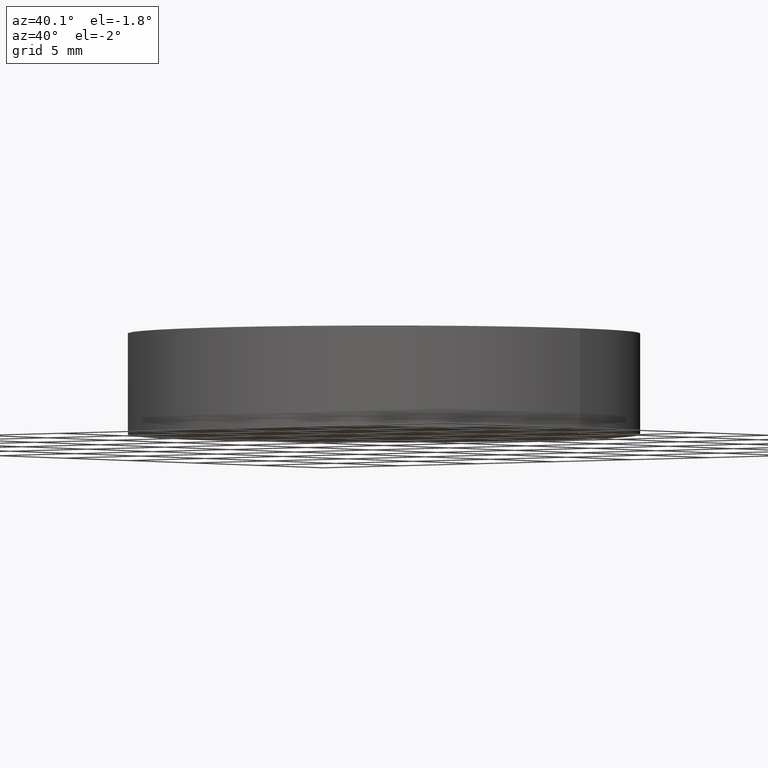
[diagram: clean part render]
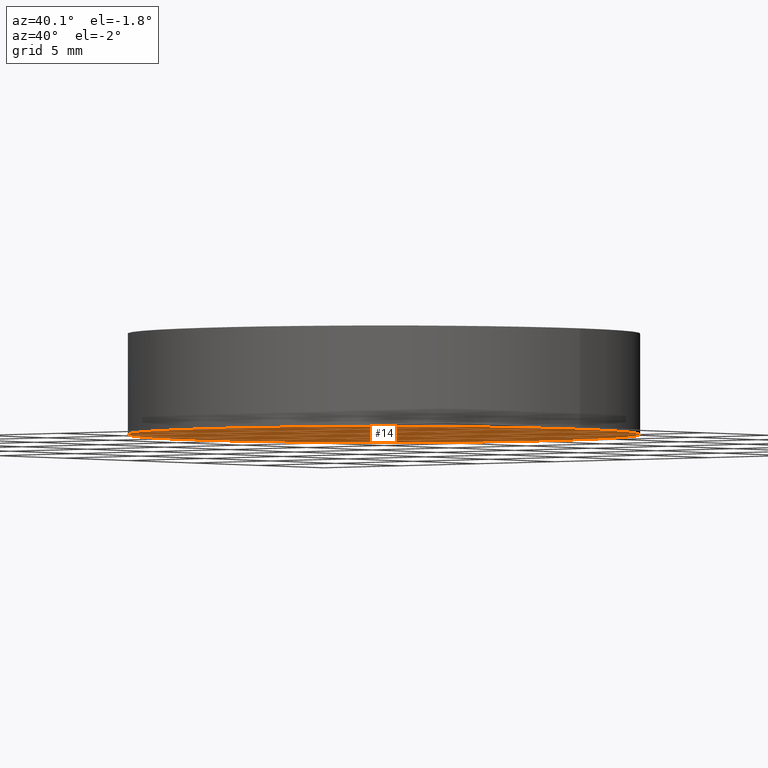
[diagram: same view with one face highlighted and labeled with its STEP entity id]
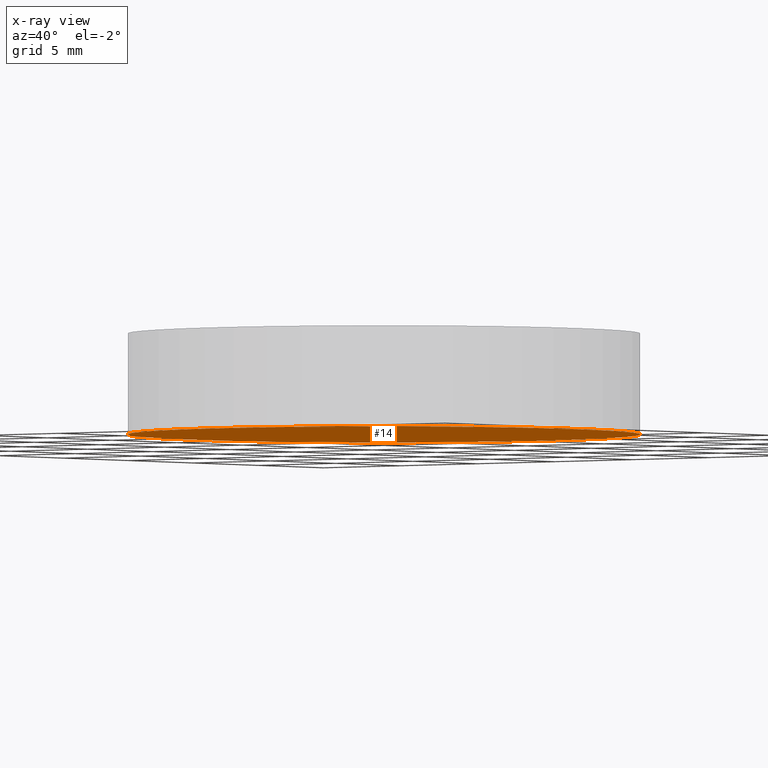
[diagram: x-ray of the same camera — body ghosted, the highlighted face saturated]
A machine part, auxiliary view. The second image highlights one B-rep face of the part: STEP entity #14.
The next image is the same camera in x-ray: the body ghosted, the highlighted face saturated — about 0% of this face is hidden behind the body in this view.
In plain terms, the highlighted planar face has unit normal (0, 0, 1).
Its self-contained STEP definition (entity closure, byte-faithful):
#2 = AXIS2_PLACEMENT_3D ( 'NONE', #52, #83, #5 ) ;
#4 = PLANE ( 'NONE',  #40 ) ;
#5 = DIRECTION ( 'NONE',  ( 1.000000000000000000, 0.0000000000000000000, 0.0000000000000000000 ) ) ;
#8 = AXIS2_PLACEMENT_3D ( 'NONE', #67, #132, #58 ) ;
#11 = EDGE_CURVE ( 'NONE', #95, #79, #19, .T. ) ;
#14 = ADVANCED_FACE ( 'NONE', ( #88 ), #4, .F. ) ;
#15 = CARTESIAN_POINT ( 'NONE',  ( 12.69999999999999900, 1.555301434917138400E-015, 0.0000000000000000000 ) ) ;
#19 = CIRCLE ( 'NONE', #2, 12.69999999999999900 ) ;
#40 = AXIS2_PLACEMENT_3D ( 'NONE', #71, #68, #134 ) ;
#44 = CIRCLE ( 'NONE', #8, 12.69999999999999900 ) ;
#49 = CARTESIAN_POINT ( 'NONE',  ( -12.69999999999999900, 0.0000000000000000000, 0.0000000000000000000 ) ) ;
#51 = ORIENTED_EDGE ( 'NONE', *, *, #11, .F. ) ;
#52 = CARTESIAN_POINT ( 'NONE',  ( 0.0000000000000000000, 0.0000000000000000000, 0.0000000000000000000 ) ) ;
#56 = ORIENTED_EDGE ( 'NONE', *, *, #77, .F. ) ;
#58 = DIRECTION ( 'NONE',  ( 1.000000000000000000, 0.0000000000000000000, 0.0000000000000000000 ) ) ;
#67 = CARTESIAN_POINT ( 'NONE',  ( 0.0000000000000000000, 0.0000000000000000000, 0.0000000000000000000 ) ) ;
#68 = DIRECTION ( 'NONE',  ( 0.0000000000000000000, 0.0000000000000000000, 1.000000000000000000 ) ) ;
#71 = CARTESIAN_POINT ( 'NONE',  ( 0.0000000000000000000, 0.0000000000000000000, 0.0000000000000000000 ) ) ;
#77 = EDGE_CURVE ( 'NONE', #79, #95, #44, .T. ) ;
#79 = VERTEX_POINT ( 'NONE', #49 ) ;
#83 = DIRECTION ( 'NONE',  ( 0.0000000000000000000, 0.0000000000000000000, 1.000000000000000000 ) ) ;
#88 = FACE_OUTER_BOUND ( 'NONE', #106, .T. ) ;
#95 = VERTEX_POINT ( 'NONE', #15 ) ;
#106 = EDGE_LOOP ( 'NONE', ( #56, #51 ) ) ;
#132 = DIRECTION ( 'NONE',  ( 0.0000000000000000000, 0.0000000000000000000, 1.000000000000000000 ) ) ;
#134 = DIRECTION ( 'NONE',  ( 1.000000000000000000, 0.0000000000000000000, -0.0000000000000000000 ) ) ;